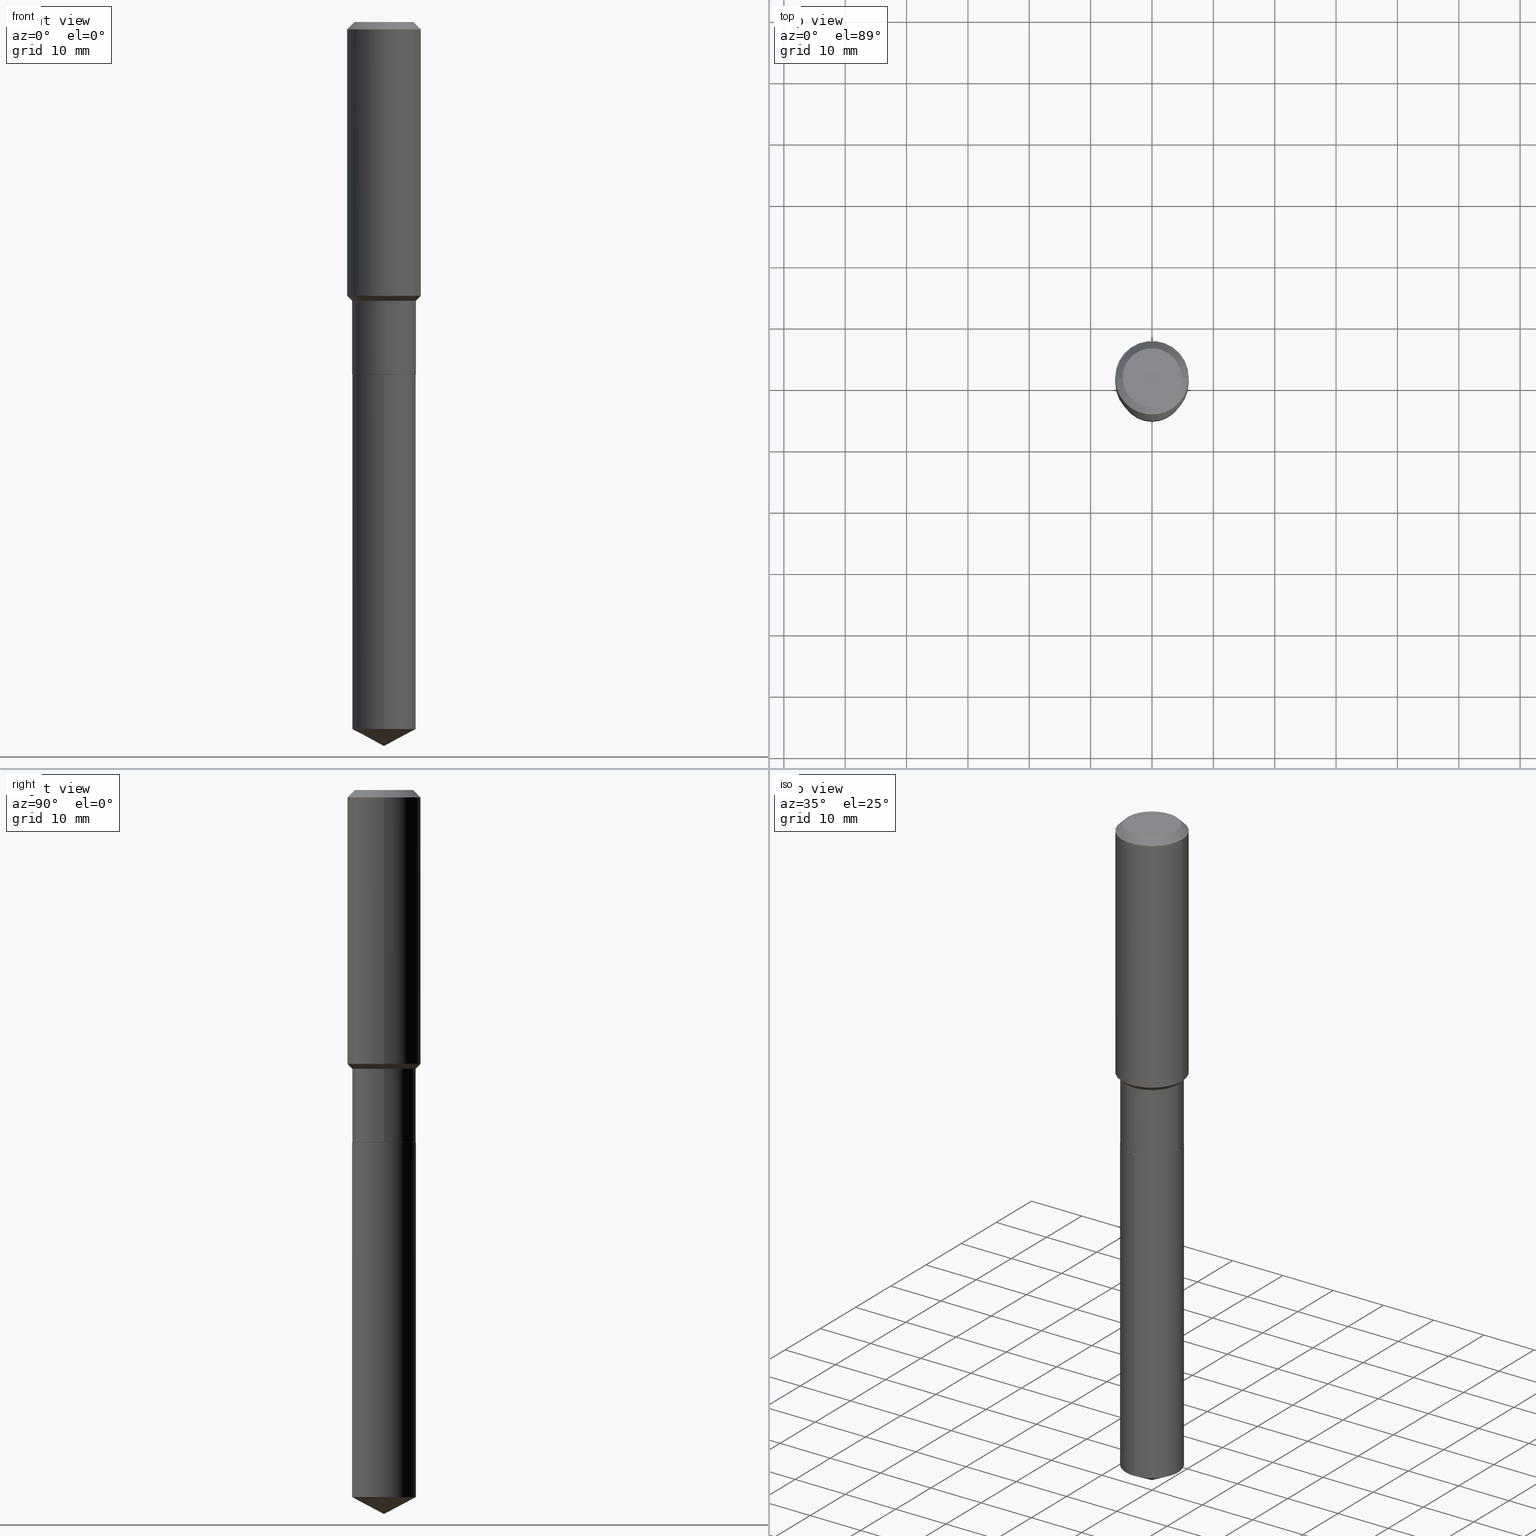
[diagram: canonical four-view strip — front | top / right | iso, engineering-drawing reading convention]
A machine part, canonical four-view strip (front | top / right | iso — engineering-drawing reading convention). The complete STEP part file that produces these views, byte-faithful:
ISO-10303-21;
HEADER;
FILE_DESCRIPTION (( 'STEP AP203' ),
    '1' );
FILE_NAME ('65234.STEP',
    '2024-04-24T21:45:18',
    ( '' ),
    ( '' ),
    'SwSTEP 2.0',
    'SolidWorks 2023',
    '' );
FILE_SCHEMA (( 'CONFIG_CONTROL_DESIGN' ));
ENDSEC;

DATA;
#1 = AXIS2_PLACEMENT_3D ( 'NONE', #62, #233, #350 ) ;
#2 = ORIENTED_EDGE ( 'NONE', *, *, #447, .F. ) ;
#3 = FACE_OUTER_BOUND ( 'NONE', #19, .T. ) ;
#4 = ORIENTED_EDGE ( 'NONE', *, *, #433, .F. ) ;
#5 = EDGE_CURVE ( 'NONE', #31, #87, #360, .T. ) ;
#6 = CYLINDRICAL_SURFACE ( 'NONE', #91, 0.2362000000000001043 ) ;
#7 = DIRECTION ( 'NONE',  ( -0.7071067811865474617, 7.493145998870352582E-15, 0.7071067811865474617 ) ) ;
#8 = CARTESIAN_POINT ( 'NONE',  ( -0.2362000000000002153, -4.458151085218409431E-15, -1.757549999999999057 ) ) ;
#9 = DIRECTION ( 'NONE',  ( -2.445468806185136597E-29, 3.491481338843145583E-15, 1.000000000000000000 ) ) ;
#10 = AXIS2_PLACEMENT_3D ( 'NONE', #69, #172, #111 ) ;
#11 = APPROVAL_DATE_TIME ( #347, #262 ) ;
#12 = DIRECTION ( 'NONE',  ( -2.445449978833330651E-29, 3.491508300682517841E-15, 1.000000000000000000 ) ) ;
#13 = DIRECTION ( 'NONE',  ( 1.000000000000000000, -6.982962677686265922E-15, 0.000000000000000000 ) ) ;
#14 = PERSON_AND_ORGANIZATION_ROLE ( 'creator' ) ;
#15 = ORIENTED_EDGE ( 'NONE', *, *, #223, .F. ) ;
#16 = CARTESIAN_POINT ( 'NONE',  ( 5.526514955097788983E-29, -7.890398677651621852E-15, -2.259899999999999132 ) ) ;
#17 = SECURITY_CLASSIFICATION_LEVEL ( 'unclassified' ) ;
#18 = LINE ( 'NONE', #474, #314 ) ;
#19 = EDGE_LOOP ( 'NONE', ( #380, #15 ) ) ;
#20 = EDGE_CURVE ( 'NONE', #132, #204, #367, .T. ) ;
#21 = AXIS2_PLACEMENT_3D ( 'NONE', #301, #117, #427 ) ;
#22 = COORDINATED_UNIVERSAL_TIME_OFFSET ( 5, 0, .BEHIND. ) ;
#23 = DIRECTION ( 'NONE',  ( -2.445468806185136877E-29, 3.491481338843145188E-15, 1.000000000000000000 ) ) ;
#24 = CYLINDRICAL_SURFACE ( 'NONE', #83, 0.2362000000000001043 ) ;
#25 = ORIENTED_EDGE ( 'NONE', *, *, #209, .F. ) ;
#26 = ORIENTED_EDGE ( 'NONE', *, *, #135, .F. ) ;
#27 = APPROVAL_PERSON_ORGANIZATION ( #378, #262, #263 ) ;
#28 = CC_DESIGN_APPROVAL ( #51, ( #463 ) ) ;
#29 = LINE ( 'NONE', #170, #104 ) ;
#30 = CARTESIAN_POINT ( 'NONE',  ( 0.2042499999999999871, -9.316668804569043122E-15, -2.259899999999999132 ) ) ;
#31 = VERTEX_POINT ( 'NONE', #408 ) ;
#32 = CALENDAR_DATE ( 2024, 24, 4 ) ;
#33 = DIRECTION ( 'NONE',  ( 1.000000000000000000, -6.982962677686266711E-15, 4.876185090822587894E-29 ) ) ;
#34 = APPROVAL ( #202, 'UNSPECIFIED' ) ;
#35 = AXIS2_PLACEMENT_3D ( 'NONE', #41, #178, #13 ) ;
#36 = AXIS2_PLACEMENT_3D ( 'NONE', #405, #287, #445 ) ;
#37 = CARTESIAN_POINT ( 'NONE',  ( 1.136082696666600344E-28, -1.622050011248077110E-14, -4.645699999999999719 ) ) ;
#38 = CARTESIAN_POINT ( 'NONE',  ( 5.526514955097788983E-29, -7.890398677651621852E-15, -2.259899999999999132 ) ) ;
#39 = CARTESIAN_POINT ( 'NONE',  ( 4.374943694265207941E-29, -6.246260115190385105E-15, -1.788999999999999480 ) ) ;
#40 = CARTESIAN_POINT ( 'NONE',  ( -0.2047499999999999043, -5.612620274617487685E-15, -1.788999999999999480 ) ) ;
#41 = CARTESIAN_POINT ( 'NONE',  ( 4.374943694265207941E-29, -6.246260115190385105E-15, -1.788999999999999480 ) ) ;
#42 = LINE ( 'NONE', #364, #277 ) ;
#43 = CARTESIAN_POINT ( 'NONE',  ( 1.454836251468860065E-15, 0.2047499999999921050, -2.259900000000000020 ) ) ;
#44 = CC_DESIGN_APPROVAL ( #262, ( #469 ) ) ;
#45 = VERTEX_POINT ( 'NONE', #109 ) ;
#46 = EDGE_CURVE ( 'NONE', #431, #162, #211, .T. ) ;
#47 = EDGE_LOOP ( 'NONE', ( #437, #428, #180, #2 ) ) ;
#48 = ORIENTED_EDGE ( 'NONE', *, *, #483, .F. ) ;
#49 = ADVANCED_FACE ( 'NONE', ( #456 ), #6, .T. ) ;
#50 = DIRECTION ( 'NONE',  ( 0.7071067811865474617, -2.468850131082256666E-15, 0.7071067811865474617 ) ) ;
#51 = APPROVAL ( #267, 'UNSPECIFIED' ) ;
#52 = ORIENTED_EDGE ( 'NONE', *, *, #327, .T. ) ;
#53 = AXIS2_PLACEMENT_3D ( 'NONE', #38, #303, #467 ) ;
#54 = PERSON_AND_ORGANIZATION_ROLE ( 'creator' ) ;
#55 = DIRECTION ( 'NONE',  ( -1.000000000000000000, 6.982962677686265922E-15, -4.876176775795935793E-29 ) ) ;
#56 = PERSON_AND_ORGANIZATION_ROLE ( 'design_supplier' ) ;
#57 = CARTESIAN_POINT ( 'NONE',  ( 1.155239464041865506E-30, -1.649375784469511859E-16, -0.04724000000000028177 ) ) ;
#58 = ORIENTED_EDGE ( 'NONE', *, *, #370, .F. ) ;
#59 = COORDINATED_UNIVERSAL_TIME_OFFSET ( 5, 0, .BEHIND. ) ;
#60 = DIRECTION ( 'NONE',  ( 2.445468806185136597E-29, -3.491481338843145583E-15, -1.000000000000000000 ) ) ;
#61 = ORIENTED_EDGE ( 'NONE', *, *, #291, .T. ) ;
#62 = CARTESIAN_POINT ( 'NONE',  ( 0.000000000000000000, 0.000000000000000000, 0.000000000000000000 ) ) ;
#63 = EDGE_CURVE ( 'NONE', #273, #431, #423, .T. ) ;
#64 = EDGE_CURVE ( 'NONE', #222, #132, #70, .T. ) ;
#65 = CARTESIAN_POINT ( 'NONE',  ( -0.1889600000000000168, 1.401969416799070942E-15, 3.855188123706346622E-18 ) ) ;
#66 = CARTESIAN_POINT ( 'NONE',  ( -9.427742298522546243E-47, 1.346031739168365344E-32, 3.855188123715862256E-18 ) ) ;
#67 = CIRCLE ( 'NONE', #21, 0.2361999999999999933 ) ;
#68 = ORIENTED_EDGE ( 'NONE', *, *, #84, .T. ) ;
#69 = CARTESIAN_POINT ( 'NONE',  ( 5.526514955097788983E-29, -7.890398677651621852E-15, -2.259899999999999132 ) ) ;
#70 = LINE ( 'NONE', #37, #113 ) ;
#71 = CARTESIAN_POINT ( 'NONE',  ( 4.298033700310684854E-29, -6.136453027083767403E-15, -1.757549999999999057 ) ) ;
#72 = FACE_OUTER_BOUND ( 'NONE', #226, .T. ) ;
#73 = CARTESIAN_POINT ( 'NONE',  ( 4.374943694265207941E-29, -6.246260115190385105E-15, -1.788999999999999480 ) ) ;
#74 = CYLINDRICAL_SURFACE ( 'NONE', #393, 0.2047499999999999598 ) ;
#75 =( LENGTH_UNIT ( ) NAMED_UNIT ( * ) SI_UNIT ( $, .METRE. ) );
#76 = CONICAL_SURFACE ( 'NONE', #143, 74.04434902938369589, 1.082104136236487379 ) ;
#77 = CARTESIAN_POINT ( 'NONE',  ( -0.2047499999999999043, -4.791423863721580851E-15, -1.788999999999999480 ) ) ;
#78 = VECTOR ( 'NONE', #296, 39.37007874015748854 ) ;
#79 = CONICAL_SURFACE ( 'NONE', #190, 0.2361999999999999933, 0.7853981633974452814 ) ;
#80 = DIRECTION ( 'NONE',  ( 0.000000000000000000, 0.000000000000000000, 1.000000000000000000 ) ) ;
#81 = DATE_TIME_ROLE ( 'creation_date' ) ;
#82 = CARTESIAN_POINT ( 'NONE',  ( -4.713871149261273121E-47, 6.730158695841826722E-33, 1.927594061857931128E-18 ) ) ;
#83 = AXIS2_PLACEMENT_3D ( 'NONE', #476, #377, #234 ) ;
#84 = EDGE_CURVE ( 'NONE', #204, #45, #188, .T. ) ;
#85 = DIRECTION ( 'NONE',  ( -6.982962677686265922E-15, -1.000000000000000000, 2.668471788683041116E-15 ) ) ;
#86 = CARTESIAN_POINT ( 'NONE',  ( 0.2361999999999999933, -1.814313362916447440E-15, -0.04724000000000028177 ) ) ;
#87 = VERTEX_POINT ( 'NONE', #138 ) ;
#88 = DATE_AND_TIME ( #166, #154 ) ;
#89 = DIRECTION ( 'NONE',  ( 1.000000000000000000, -6.982962677686266711E-15, 0.000000000000000000 ) ) ;
#90 = ORIENTED_EDGE ( 'NONE', *, *, #84, .F. ) ;
#91 = AXIS2_PLACEMENT_3D ( 'NONE', #298, #372, #488 ) ;
#92 = EDGE_CURVE ( 'NONE', #222, #110, #257, .T. ) ;
#93 = VECTOR ( 'NONE', #7, 39.37007874015748854 ) ;
#94 = EDGE_LOOP ( 'NONE', ( #403, #275, #25 ) ) ;
#95 = ORIENTED_EDGE ( 'NONE', *, *, #409, .F. ) ;
#96 = AXIS2_PLACEMENT_3D ( 'NONE', #294, #242, #402 ) ;
#97 = DATE_TIME_ROLE ( 'classification_date' ) ;
#98 = EDGE_LOOP ( 'NONE', ( #462, #208, #237, #61 ) ) ;
#99 = ADVANCED_FACE ( 'NONE', ( #72 ), #218, .T. ) ;
#100 = DIRECTION ( 'NONE',  ( -2.445449978833330651E-29, 3.491508300682517446E-15, 1.000000000000000000 ) ) ;
#101 = DIRECTION ( 'NONE',  ( -2.445449978833330651E-29, 3.491508300682517841E-15, 1.000000000000000000 ) ) ;
#102 = CARTESIAN_POINT ( 'NONE',  ( 1.454836251468915680E-15, 0.2047499999999841391, -4.536832493867312799 ) ) ;
#103 = CARTESIAN_POINT ( 'NONE',  ( -8.491668870718633283E-28, 1.212405175383641938E-13, 34.72437874015748349 ) ) ;
#104 = VECTOR ( 'NONE', #315, 39.37007874015748143 ) ;
#105 = DIRECTION ( 'NONE',  ( -2.445449978833330651E-29, 3.491508300682517841E-15, 1.000000000000000000 ) ) ;
#106 = APPROVAL_PERSON_ORGANIZATION ( #159, #51, #424 ) ;
#107 = EDGE_LOOP ( 'NONE', ( #128, #282, #158, #278 ) ) ;
#108 = DIRECTION ( 'NONE',  ( 1.000000000000000000, -6.982962677686265922E-15, 0.000000000000000000 ) ) ;
#109 = CARTESIAN_POINT ( 'NONE',  ( 1.454836251468916272E-15, 0.2047499999999921050, -2.259900000000000020 ) ) ;
#110 = VERTEX_POINT ( 'NONE', #102 ) ;
#111 = DIRECTION ( 'NONE',  ( 6.982962677686265922E-15, 1.000000000000000000, -3.491508300682517446E-15 ) ) ;
#112 = DIRECTION ( 'NONE',  ( -0.7071067811866199593, 7.493145998870616062E-15, 0.7071067811864750752 ) ) ;
#113 = VECTOR ( 'NONE', #363, 39.37007874015747433 ) ;
#114 = AXIS2_PLACEMENT_3D ( 'NONE', #16, #390, #432 ) ;
#115 = CC_DESIGN_PERSON_AND_ORGANIZATION_ASSIGNMENT ( #440, #207, ( #338 ) ) ;
#116 = UNCERTAINTY_MEASURE_WITH_UNIT (LENGTH_MEASURE( 1.000000000000000082E-05 ), #183, 'distance_accuracy_value', 'NONE');
#117 = DIRECTION ( 'NONE',  ( -2.445468806185136597E-29, 3.491481338843145583E-15, 1.000000000000000000 ) ) ;
#118 = ORIENTED_EDGE ( 'NONE', *, *, #185, .F. ) ;
#119 = CARTESIAN_POINT ( 'NONE',  ( 1.136082696666600344E-28, -1.622050011248077110E-14, -4.645699999999999719 ) ) ;
#120 = ORIENTED_EDGE ( 'NONE', *, *, #483, .T. ) ;
#121 = APPLICATION_PROTOCOL_DEFINITION ( 'international standard', 'config_control_design', 1994, #414 ) ;
#122 = DIRECTION ( 'NONE',  ( -1.000000000000000000, 6.982962677686266711E-15, 0.000000000000000000 ) ) ;
#123 =( GEOMETRIC_REPRESENTATION_CONTEXT ( 3 ) GLOBAL_UNCERTAINTY_ASSIGNED_CONTEXT ( ( #116 ) ) GLOBAL_UNIT_ASSIGNED_CONTEXT ( ( #183, #472, #186 ) ) REPRESENTATION_CONTEXT ( 'NONE', 'WORKASPACE' ) );
#124 = CC_DESIGN_SECURITY_CLASSIFICATION ( #338, ( #463 ) ) ;
#125 = CC_DESIGN_PERSON_AND_ORGANIZATION_ASSIGNMENT ( #157, #54, ( #469 ) ) ;
#126 = DIRECTION ( 'NONE',  ( -6.982962677686265922E-15, -1.000000000000000000, 4.002707683024561674E-15 ) ) ;
#127 = CARTESIAN_POINT ( 'NONE',  ( -0.2047499999999999598, 1.454836251468804845E-15, -1.007151959729691630E-29 ) ) ;
#128 = ORIENTED_EDGE ( 'NONE', *, *, #135, .T. ) ;
#129 = DIRECTION ( 'NONE',  ( -2.445468806185136597E-29, 3.491481338843145583E-15, 1.000000000000000000 ) ) ;
#130 = CC_DESIGN_PERSON_AND_ORGANIZATION_ASSIGNMENT ( #225, #459, ( #200 ) ) ;
#131 = AXIS2_PLACEMENT_3D ( 'NONE', #362, #251, #213 ) ;
#132 = VERTEX_POINT ( 'NONE', #250 ) ;
#133 = FACE_OUTER_BOUND ( 'NONE', #265, .T. ) ;
#134 = ORIENTED_EDGE ( 'NONE', *, *, #185, .T. ) ;
#135 = EDGE_CURVE ( 'NONE', #31, #162, #284, .T. ) ;
#136 = CONICAL_SURFACE ( 'NONE', #219, 0.2361999999999999933, 0.7853981633974452814 ) ;
#137 = CC_DESIGN_PERSON_AND_ORGANIZATION_ASSIGNMENT ( #387, #56, ( #463 ) ) ;
#138 = CARTESIAN_POINT ( 'NONE',  ( 0.2047499999999999043, -7.676021723446647015E-15, -1.788999999999999480 ) ) ;
#139 = CARTESIAN_POINT ( 'NONE',  ( -0.2361999999999999933, 1.484438206022545019E-15, -0.04724000000000028177 ) ) ;
#140 = ADVANCED_FACE ( 'NONE', ( #413 ), #74, .T. ) ;
#141 = LINE ( 'NONE', #139, #365 ) ;
#142 = ADVANCED_FACE ( 'NONE', ( #290 ), #76, .T. ) ;
#143 = AXIS2_PLACEMENT_3D ( 'NONE', #220, #105, #253 ) ;
#144 = AXIS2_PLACEMENT_3D ( 'NONE', #335, #261, #89 ) ;
#145 = ORIENTED_EDGE ( 'NONE', *, *, #223, .T. ) ;
#146 = PLANE ( 'NONE',  #96 ) ;
#147 = ADVANCED_FACE ( 'NONE', ( #369 ), #460, .T. ) ;
#148 = DIRECTION ( 'NONE',  ( -2.445468806185136597E-29, 3.491481338843145583E-15, 1.000000000000000000 ) ) ;
#149 = APPLICATION_CONTEXT ( 'configuration controlled 3d designs of mechanical parts and assemblies' ) ;
#150 = DIRECTION ( 'NONE',  ( 1.000000000000000000, -6.982962677686266711E-15, 0.000000000000000000 ) ) ;
#151 = EDGE_LOOP ( 'NONE', ( #58, #406, #243, #48 ) ) ;
#152 = AXIS2_PLACEMENT_3D ( 'NONE', #156, #465, #382 ) ;
#153 = CONICAL_SURFACE ( 'NONE', #486, 74.04434902938369589, 1.082104136236487379 ) ;
#154 = LOCAL_TIME ( 17, 45, 18.00000000000000000, #430 ) ;
#155 = DIRECTION ( 'NONE',  ( 2.445468806185136597E-29, -3.491481338843145583E-15, -1.000000000000000000 ) ) ;
#156 = CARTESIAN_POINT ( 'NONE',  ( 5.526514955097788983E-29, -7.890398677651621852E-15, -2.259899999999999132 ) ) ;
#157 = PERSON_AND_ORGANIZATION ( #420, #337 ) ;
#158 = ORIENTED_EDGE ( 'NONE', *, *, #416, .F. ) ;
#159 = PERSON_AND_ORGANIZATION ( #420, #337 ) ;
#160 = ORIENTED_EDGE ( 'NONE', *, *, #416, .T. ) ;
#161 = CARTESIAN_POINT ( 'NONE',  ( 0.2047499999999999043, -7.676021723446647015E-15, -1.788999999999999480 ) ) ;
#162 = VERTEX_POINT ( 'NONE', #356 ) ;
#163 = AXIS2_PLACEMENT_3D ( 'NONE', #448, #101, #85 ) ;
#164 = APPLICATION_PROTOCOL_DEFINITION ( 'international standard', 'config_control_design', 1994, #149 ) ;
#165 = EDGE_LOOP ( 'NONE', ( #438, #305, #392, #478 ) ) ;
#166 = CALENDAR_DATE ( 2024, 24, 4 ) ;
#167 = PRODUCT_RELATED_PRODUCT_CATEGORY ( 'detail', '', ( #200 ) ) ;
#168 = ORIENTED_EDGE ( 'NONE', *, *, #201, .T. ) ;
#169 = ORIENTED_EDGE ( 'NONE', *, *, #346, .T. ) ;
#170 = CARTESIAN_POINT ( 'NONE',  ( 0.2361999999999999933, -1.785387205520586782E-15, -0.04724000000000028177 ) ) ;
#171 = VERTEX_POINT ( 'NONE', #339 ) ;
#172 = DIRECTION ( 'NONE',  ( 2.445449978833330651E-29, -3.491508300682517446E-15, -1.000000000000000000 ) ) ;
#173 = VECTOR ( 'NONE', #292, 39.37007874015748143 ) ;
#174 = AXIS2_PLACEMENT_3D ( 'NONE', #82, #229, #55 ) ;
#175 = DIRECTION ( 'NONE',  ( 1.000000000000000000, -6.982962677686270655E-15, 0.000000000000000000 ) ) ;
#176 = LINE ( 'NONE', #43, #329 ) ;
#177 = DIRECTION ( 'NONE',  ( -2.445468806185136597E-29, 3.491481338843145583E-15, 1.000000000000000000 ) ) ;
#178 = DIRECTION ( 'NONE',  ( -2.445468806185136597E-29, 3.491481338843145583E-15, 1.000000000000000000 ) ) ;
#179 = DIRECTION ( 'NONE',  ( 1.000000000000000000, -6.982962677686265922E-15, 0.000000000000000000 ) ) ;
#180 = ORIENTED_EDGE ( 'NONE', *, *, #295, .F. ) ;
#181 = DIRECTION ( 'NONE',  ( -2.445449978833330651E-29, 3.491508300682517841E-15, 1.000000000000000000 ) ) ;
#182 = CIRCLE ( 'NONE', #299, 0.2047499999999999876 ) ;
#183 =( CONVERSION_BASED_UNIT ( 'INCH', #373 ) LENGTH_UNIT ( ) NAMED_UNIT ( #371 ) );
#184 = EDGE_LOOP ( 'NONE', ( #168, #52 ) ) ;
#185 = EDGE_CURVE ( 'NONE', #45, #204, #182, .T. ) ;
#186 =( NAMED_UNIT ( * ) SI_UNIT ( $, .STERADIAN. ) SOLID_ANGLE_UNIT ( ) );
#187 = LINE ( 'NONE', #161, #320 ) ;
#188 = CIRCLE ( 'NONE', #266, 0.2047499999999999876 ) ;
#189 = ADVANCED_FACE ( 'NONE', ( #306 ), #260, .T. ) ;
#190 = AXIS2_PLACEMENT_3D ( 'NONE', #57, #60, #344 ) ;
#191 = DATE_AND_TIME ( #466, #214 ) ;
#192 = ORIENTED_EDGE ( 'NONE', *, *, #46, .T. ) ;
#193 = ORIENTED_EDGE ( 'NONE', *, *, #209, .T. ) ;
#194 = DATE_AND_TIME ( #302, #308 ) ;
#195 = DIRECTION ( 'NONE',  ( 1.000000000000000000, -6.982962677686266711E-15, 4.876185090822587894E-29 ) ) ;
#196 = FACE_OUTER_BOUND ( 'NONE', #391, .T. ) ;
#197 = ADVANCED_FACE ( 'NONE', ( #133 ), #452, .T. ) ;
#198 = CIRCLE ( 'NONE', #114, 0.2042499999999999871 ) ;
#199 = APPROVAL_PERSON_ORGANIZATION ( #436, #34, #473 ) ;
#200 = PRODUCT ( '65234', '65234', '', ( #340 ) ) ;
#201 = EDGE_CURVE ( 'NONE', #259, #401, #276, .T. ) ;
#202 = APPROVAL_STATUS ( 'not_yet_approved' ) ;
#203 = VERTEX_POINT ( 'NONE', #317 ) ;
#204 = VERTEX_POINT ( 'NONE', #484 ) ;
#205 = EDGE_CURVE ( 'NONE', #132, #110, #479, .T. ) ;
#206 = CIRCLE ( 'NONE', #434, 0.2047499999999999043 ) ;
#207 = PERSON_AND_ORGANIZATION_ROLE ( 'classification_officer' ) ;
#208 = ORIENTED_EDGE ( 'NONE', *, *, #201, .F. ) ;
#209 = EDGE_CURVE ( 'NONE', #110, #132, #412, .T. ) ;
#210 = ORIENTED_EDGE ( 'NONE', *, *, #63, .T. ) ;
#211 = LINE ( 'NONE', #330, #319 ) ;
#212 = LINE ( 'NONE', #77, #93 ) ;
#213 = DIRECTION ( 'NONE',  ( -6.982962677686265922E-15, -1.000000000000000000, 4.002707683024561674E-15 ) ) ;
#214 = LOCAL_TIME ( 17, 45, 18.00000000000000000, #59 ) ;
#215 = CARTESIAN_POINT ( 'NONE',  ( 5.525292220694696181E-29, -7.888652936982201138E-15, -2.259399999999999409 ) ) ;
#216 = DIRECTION ( 'NONE',  ( -2.445468806185136597E-29, 3.491481338843145583E-15, 1.000000000000000000 ) ) ;
#217 = DIRECTION ( 'NONE',  ( -2.445468806185136597E-29, 3.491481338843145583E-15, 1.000000000000000000 ) ) ;
#218 = CONICAL_SURFACE ( 'NONE', #328, 0.2047499999999999043, 0.7853981633974482790 ) ;
#219 = AXIS2_PLACEMENT_3D ( 'NONE', #422, #155, #122 ) ;
#220 = CARTESIAN_POINT ( 'NONE',  ( -8.491668870718633283E-28, 1.212405175383641938E-13, 34.72437874015748349 ) ) ;
#221 = DIRECTION ( 'NONE',  ( -2.445468806185136597E-29, 3.491481338843145583E-15, 1.000000000000000000 ) ) ;
#222 = VERTEX_POINT ( 'NONE', #119 ) ;
#223 = EDGE_CURVE ( 'NONE', #431, #273, #198, .T. ) ;
#224 = CARTESIAN_POINT ( 'NONE',  ( 5.526514955097788983E-29, -7.890398677651621852E-15, -2.259899999999999132 ) ) ;
#225 = PERSON_AND_ORGANIZATION ( #420, #337 ) ;
#226 = EDGE_LOOP ( 'NONE', ( #160, #297, #477, #255 ) ) ;
#227 = ADVANCED_FACE ( 'NONE', ( #386 ), #352, .T. ) ;
#228 = CALENDAR_DATE ( 2024, 24, 4 ) ;
#229 = DIRECTION ( 'NONE',  ( 2.438088387897960049E-29, -3.491481338843145188E-15, -1.000000000000000000 ) ) ;
#230 = CLOSED_SHELL ( 'NONE', ( #197, #142, #249, #189, #280 ) ) ;
#231 = VECTOR ( 'NONE', #368, 39.37007874015748143 ) ;
#232 = MANIFOLD_SOLID_BREP ( 'Body-Move/Copy2[1]', #230 ) ;
#233 = DIRECTION ( 'NONE',  ( -2.445468806185136597E-29, 3.491481338843145583E-15, 1.000000000000000000 ) ) ;
#234 = DIRECTION ( 'NONE',  ( 1.000000000000000000, -6.982962677686266711E-15, 4.876176775795935793E-29 ) ) ;
#235 = PERSON_AND_ORGANIZATION ( #420, #337 ) ;
#236 = ADVANCED_FACE ( 'NONE', ( #196 ), #24, .T. ) ;
#237 = ORIENTED_EDGE ( 'NONE', *, *, #481, .T. ) ;
#238 = ORIENTED_EDGE ( 'NONE', *, *, #205, .T. ) ;
#239 = AXIS2_PLACEMENT_3D ( 'NONE', #458, #216, #175 ) ;
#240 = CONICAL_SURFACE ( 'NONE', #36, 0.2042499999999999871, 0.7853981633975507526 ) ;
#241 = ORIENTED_EDGE ( 'NONE', *, *, #20, .T. ) ;
#242 = DIRECTION ( 'NONE',  ( -2.438088387897960049E-29, 3.491481338843145188E-15, 1.000000000000000000 ) ) ;
#243 = ORIENTED_EDGE ( 'NONE', *, *, #5, .T. ) ;
#244 = LOCAL_TIME ( 17, 45, 18.00000000000000000, #426 ) ;
#245 = ORIENTED_EDGE ( 'NONE', *, *, #366, .F. ) ;
#246 = ORIENTED_EDGE ( 'NONE', *, *, #447, .T. ) ;
#247 = DIRECTION ( 'NONE',  ( 1.000000000000000000, -6.982962677686263555E-15, 0.000000000000000000 ) ) ;
#248 = ADVANCED_BREP_SHAPE_REPRESENTATION ( '65234', ( #232, #399, #404 ), #123 ) ;
#249 = ADVANCED_FACE ( 'NONE', ( #274 ), #153, .T. ) ;
#250 = CARTESIAN_POINT ( 'NONE',  ( -1.429761608256151864E-15, -0.2047500000000158360, -4.536832493867311911 ) ) ;
#251 = DIRECTION ( 'NONE',  ( -2.445449978833330651E-29, 3.491508300682517841E-15, 1.000000000000000000 ) ) ;
#252 = AXIS2_PLACEMENT_3D ( 'NONE', #343, #12, #468 ) ;
#253 = DIRECTION ( 'NONE',  ( -6.982962677686265922E-15, -1.000000000000000000, 3.541896320645553375E-15 ) ) ;
#254 = CARTESIAN_POINT ( 'NONE',  ( 0.1889600000000000168, -1.540873453589747738E-15, 3.855188123725863225E-18 ) ) ;
#255 = ORIENTED_EDGE ( 'NONE', *, *, #346, .F. ) ;
#256 = DIRECTION ( 'NONE',  ( 1.000000000000000000, -6.982962677686263555E-15, 0.000000000000000000 ) ) ;
#257 = LINE ( 'NONE', #288, #78 ) ;
#258 = ADVANCED_FACE ( 'NONE', ( #3 ), #146, .F. ) ;
#259 = VERTEX_POINT ( 'NONE', #65 ) ;
#260 = CYLINDRICAL_SURFACE ( 'NONE', #152, 0.2047499999999999876 ) ;
#261 = DIRECTION ( 'NONE',  ( -2.445468806185136597E-29, 3.491481338843145583E-15, 1.000000000000000000 ) ) ;
#262 = APPROVAL ( #334, 'UNSPECIFIED' ) ;
#263 = APPROVAL_ROLE ( '' ) ;
#264 = FACE_OUTER_BOUND ( 'NONE', #165, .T. ) ;
#265 = EDGE_LOOP ( 'NONE', ( #238, #417, #90, #407 ) ) ;
#266 = AXIS2_PLACEMENT_3D ( 'NONE', #410, #453, #322 ) ;
#267 = APPROVAL_STATUS ( 'not_yet_approved' ) ;
#268 = CIRCLE ( 'NONE', #300, 0.2362000000000002153 ) ;
#269 = LOCAL_TIME ( 17, 45, 18.00000000000000000, #400 ) ;
#270 = EDGE_LOOP ( 'NONE', ( #4, #120, #169, #95 ) ) ;
#271 = CARTESIAN_POINT ( 'NONE',  ( 0.000000000000000000, 0.000000000000000000, 0.000000000000000000 ) ) ;
#272 = ORIENTED_EDGE ( 'NONE', *, *, #92, .T. ) ;
#273 = VERTEX_POINT ( 'NONE', #30 ) ;
#274 = FACE_OUTER_BOUND ( 'NONE', #94, .T. ) ;
#275 = ORIENTED_EDGE ( 'NONE', *, *, #64, .T. ) ;
#276 = CIRCLE ( 'NONE', #411, 0.1889600000000000168 ) ;
#277 = VECTOR ( 'NONE', #325, 39.37007874015748143 ) ;
#278 = ORIENTED_EDGE ( 'NONE', *, *, #5, .F. ) ;
#279 = EDGE_CURVE ( 'NONE', #162, #31, #358, .T. ) ;
#280 = ADVANCED_FACE ( 'NONE', ( #355 ), #446, .F. ) ;
#281 = EDGE_LOOP ( 'NONE', ( #210, #192, #26, #357 ) ) ;
#282 = ORIENTED_EDGE ( 'NONE', *, *, #370, .T. ) ;
#283 = DIRECTION ( 'NONE',  ( -2.445468806185136597E-29, 3.491481338843145583E-15, 1.000000000000000000 ) ) ;
#284 = CIRCLE ( 'NONE', #336, 0.2047499999999999876 ) ;
#285 = AXIS2_PLACEMENT_3D ( 'NONE', #444, #283, #247 ) ;
#286 = ADVANCED_FACE ( 'NONE', ( #332 ), #480, .T. ) ;
#287 = DIRECTION ( 'NONE',  ( -2.445468806185136597E-29, 3.491481338843145583E-15, 1.000000000000000000 ) ) ;
#288 = CARTESIAN_POINT ( 'NONE',  ( 1.136091280872098222E-28, -1.622037825035917687E-14, -4.645699999999999719 ) ) ;
#289 = DIRECTION ( 'NONE',  ( -0.7071067811865453523, 2.468850131082234184E-15, -0.7071067811865496822 ) ) ;
#290 = FACE_OUTER_BOUND ( 'NONE', #442, .T. ) ;
#291 = EDGE_CURVE ( 'NONE', #171, #345, #67, .T. ) ;
#292 = DIRECTION ( 'NONE',  ( -2.445449978833330651E-29, 3.491508300682517446E-15, 1.000000000000000000 ) ) ;
#293 = CARTESIAN_POINT ( 'NONE',  ( -0.2042499999999999871, -6.436465912687506508E-15, -2.259899999999999132 ) ) ;
#294 = CARTESIAN_POINT ( 'NONE',  ( 5.526514955097788983E-29, -7.890398677651621852E-15, -2.259899999999999132 ) ) ;
#295 = EDGE_CURVE ( 'NONE', #345, #171, #443, .T. ) ;
#296 = DIRECTION ( 'NONE',  ( 6.273719981627766076E-15, 0.8829475928589298750, 0.4694715627858848661 ) ) ;
#297 = ORIENTED_EDGE ( 'NONE', *, *, #433, .T. ) ;
#298 = CARTESIAN_POINT ( 'NONE',  ( 0.000000000000000000, 0.000000000000000000, 0.000000000000000000 ) ) ;
#299 = AXIS2_PLACEMENT_3D ( 'NONE', #224, #421, #126 ) ;
#300 = AXIS2_PLACEMENT_3D ( 'NONE', #312, #129, #487 ) ;
#301 = CARTESIAN_POINT ( 'NONE',  ( 1.155239464041865506E-30, -1.649375784469511859E-16, -0.04724000000000028177 ) ) ;
#302 = CALENDAR_DATE ( 2024, 24, 4 ) ;
#303 = DIRECTION ( 'NONE',  ( -2.445468806185136597E-29, 3.491481338843145583E-15, 1.000000000000000000 ) ) ;
#304 = ORIENTED_EDGE ( 'NONE', *, *, #64, .F. ) ;
#305 = ORIENTED_EDGE ( 'NONE', *, *, #376, .T. ) ;
#306 = FACE_OUTER_BOUND ( 'NONE', #389, .T. ) ;
#307 = DIRECTION ( 'NONE',  ( 1.000000000000000000, 0.000000000000000000, 0.000000000000000000 ) ) ;
#308 = LOCAL_TIME ( 17, 45, 18.00000000000000000, #22 ) ;
#309 = DIRECTION ( 'NONE',  ( -2.445468806185136877E-29, 3.491481338843145188E-15, 1.000000000000000000 ) ) ;
#310 = ADVANCED_FACE ( 'NONE', ( #264 ), #136, .T. ) ;
#311 = DATE_AND_TIME ( #32, #269 ) ;
#312 = CARTESIAN_POINT ( 'NONE',  ( 4.298033700310684854E-29, -6.136453027083767403E-15, -1.757549999999999057 ) ) ;
#313 = ORIENTED_EDGE ( 'NONE', *, *, #279, .F. ) ;
#314 = VECTOR ( 'NONE', #309, 39.37007874015748143 ) ;
#315 = DIRECTION ( 'NONE',  ( 0.7071067811865453523, -7.319954787623248157E-15, -0.7071067811865496822 ) ) ;
#316 = ADVANCED_FACE ( 'NONE', ( #384 ), #379, .F. ) ;
#317 = CARTESIAN_POINT ( 'NONE',  ( 0.2362000000000002153, -7.785828811553264717E-15, -1.757549999999999057 ) ) ;
#318 = DIRECTION ( 'NONE',  ( -2.445468806185136877E-29, 3.491481338843145188E-15, 1.000000000000000000 ) ) ;
#319 = VECTOR ( 'NONE', #112, 39.37007874015748143 ) ;
#320 = VECTOR ( 'NONE', #50, 39.37007874015748854 ) ;
#321 = CC_DESIGN_APPROVAL ( #34, ( #338 ) ) ;
#322 = DIRECTION ( 'NONE',  ( -6.982962677686265922E-15, -1.000000000000000000, 4.002707683024561674E-15 ) ) ;
#323 = LINE ( 'NONE', #489, #231 ) ;
#324 = DIRECTION ( 'NONE',  ( 1.000000000000000000, -6.982962677686265922E-15, 0.000000000000000000 ) ) ;
#325 = DIRECTION ( 'NONE',  ( -2.445468806185136877E-29, 3.491481338843145188E-15, 1.000000000000000000 ) ) ;
#326 = DIRECTION ( 'NONE',  ( -6.982962677686265922E-15, -1.000000000000000000, 3.541896320645553375E-15 ) ) ;
#327 = EDGE_CURVE ( 'NONE', #401, #259, #471, .T. ) ;
#328 = AXIS2_PLACEMENT_3D ( 'NONE', #39, #449, #108 ) ;
#329 = VECTOR ( 'NONE', #100, 39.37007874015748143 ) ;
#330 = CARTESIAN_POINT ( 'NONE',  ( -0.2042499999999999871, -6.439115139861616920E-15, -2.259899999999999132 ) ) ;
#331 = CARTESIAN_POINT ( 'NONE',  ( -1.429761608256207479E-15, -0.2047500000000078701, -2.259899999999998688 ) ) ;
#332 = FACE_OUTER_BOUND ( 'NONE', #281, .T. ) ;
#333 = CC_DESIGN_DATE_AND_TIME_ASSIGNMENT ( #311, #97, ( #338 ) ) ;
#334 = APPROVAL_STATUS ( 'not_yet_approved' ) ;
#335 = CARTESIAN_POINT ( 'NONE',  ( 1.155239464041865506E-30, -1.649375784469511859E-16, -0.04724000000000028177 ) ) ;
#336 = AXIS2_PLACEMENT_3D ( 'NONE', #215, #177, #256 ) ;
#337 = ORGANIZATION ( 'UNSPECIFIED', 'UNSPECIFIED', '' ) ;
#338 = SECURITY_CLASSIFICATION ( '', '', #17 ) ;
#339 = CARTESIAN_POINT ( 'NONE',  ( -0.2361999999999999933, -1.472393360900001581E-15, -0.04724000000000028177 ) ) ;
#340 = MECHANICAL_CONTEXT ( 'NONE', #414, 'mechanical' ) ;
#341 = APPROVAL_DATE_TIME ( #191, #51 ) ;
#342 = EDGE_LOOP ( 'NONE', ( #461, #145, #354, #313 ) ) ;
#343 = CARTESIAN_POINT ( 'NONE',  ( 1.109463947403053403E-28, -1.584032738008309195E-14, -4.536832493867312799 ) ) ;
#344 = DIRECTION ( 'NONE',  ( -1.000000000000000000, 6.982962677686266711E-15, 0.000000000000000000 ) ) ;
#345 = VERTEX_POINT ( 'NONE', #86 ) ;
#346 = EDGE_CURVE ( 'NONE', #87, #203, #187, .T. ) ;
#347 = DATE_AND_TIME ( #228, #244 ) ;
#348 = CIRCLE ( 'NONE', #381, 0.2047499999999999043 ) ;
#349 = LINE ( 'NONE', #127, #418 ) ;
#350 = DIRECTION ( 'NONE',  ( 1.000000000000000000, -6.982962677686266711E-15, 4.876176775795936353E-29 ) ) ;
#351 = ORIENTED_EDGE ( 'NONE', *, *, #205, .F. ) ;
#352 = CYLINDRICAL_SURFACE ( 'NONE', #1, 0.2047499999999999598 ) ;
#353 = ADVANCED_FACE ( 'NONE', ( #388 ), #79, .T. ) ;
#354 = ORIENTED_EDGE ( 'NONE', *, *, #464, .T. ) ;
#355 = FACE_OUTER_BOUND ( 'NONE', #396, .T. ) ;
#356 = CARTESIAN_POINT ( 'NONE',  ( -0.2047499999999999876, -5.612620274617487685E-15, -2.259399999999999409 ) ) ;
#357 = ORIENTED_EDGE ( 'NONE', *, *, #464, .F. ) ;
#358 = CIRCLE ( 'NONE', #285, 0.2047499999999999876 ) ;
#359 = SHAPE_DEFINITION_REPRESENTATION ( #429, #248 ) ;
#360 = LINE ( 'NONE', #361, #454 ) ;
#361 = CARTESIAN_POINT ( 'NONE',  ( 0.2047499999999999598, -1.429761608256262896E-15, 9.983971948442177163E-30 ) ) ;
#362 = CARTESIAN_POINT ( 'NONE',  ( 5.526514955097788983E-29, -7.890398677651621852E-15, -2.259899999999999132 ) ) ;
#363 = DIRECTION ( 'NONE',  ( -6.165590087286837607E-15, -0.8829475928589267664, 0.4694715627858912499 ) ) ;
#364 = CARTESIAN_POINT ( 'NONE',  ( 0.2362000000000001043, -1.649375784469496920E-15, 1.151752954443000508E-29 ) ) ;
#365 = VECTOR ( 'NONE', #289, 39.37007874015748143 ) ;
#366 = EDGE_CURVE ( 'NONE', #398, #171, #18, .T. ) ;
#367 = LINE ( 'NONE', #331, #173 ) ;
#368 = DIRECTION ( 'NONE',  ( 0.7071067811866199593, -2.468850131083015945E-15, 0.7071067811864750752 ) ) ;
#369 = FACE_OUTER_BOUND ( 'NONE', #270, .T. ) ;
#370 = EDGE_CURVE ( 'NONE', #162, #470, #349, .T. ) ;
#371 = DIMENSIONAL_EXPONENTS ( 1.000000000000000000, 0.000000000000000000, 0.000000000000000000, 0.000000000000000000, 0.000000000000000000, 0.000000000000000000, 0.000000000000000000 ) ;
#372 = DIRECTION ( 'NONE',  ( -2.445468806185136597E-29, 3.491481338843145583E-15, 1.000000000000000000 ) ) ;
#373 = LENGTH_MEASURE_WITH_UNIT ( LENGTH_MEASURE( 0.02539999999999999897 ), #75 );
#374 = EDGE_CURVE ( 'NONE', #203, #398, #268, .T. ) ;
#375 = CARTESIAN_POINT ( 'NONE',  ( 0.000000000000000000, 0.000000000000000000, 0.000000000000000000 ) ) ;
#376 = EDGE_CURVE ( 'NONE', #401, #345, #29, .T. ) ;
#377 = DIRECTION ( 'NONE',  ( -2.445468806185136597E-29, 3.491481338843145583E-15, 1.000000000000000000 ) ) ;
#378 = PERSON_AND_ORGANIZATION ( #420, #337 ) ;
#379 = PLANE ( 'NONE',  #174 ) ;
#380 = ORIENTED_EDGE ( 'NONE', *, *, #63, .F. ) ;
#381 = AXIS2_PLACEMENT_3D ( 'NONE', #73, #221, #179 ) ;
#382 = DIRECTION ( 'NONE',  ( -6.982962677686265922E-15, -1.000000000000000000, 4.002707683024561674E-15 ) ) ;
#383 = ADVANCED_FACE ( 'NONE', ( #482 ), #240, .T. ) ;
#384 = FACE_OUTER_BOUND ( 'NONE', #184, .T. ) ;
#385 = ORIENTED_EDGE ( 'NONE', *, *, #451, .F. ) ;
#386 = FACE_OUTER_BOUND ( 'NONE', #151, .T. ) ;
#387 = PERSON_AND_ORGANIZATION ( #420, #337 ) ;
#388 = FACE_OUTER_BOUND ( 'NONE', #98, .T. ) ;
#389 = EDGE_LOOP ( 'NONE', ( #385, #193, #241, #118 ) ) ;
#390 = DIRECTION ( 'NONE',  ( -2.445468806185136597E-29, 3.491481338843145583E-15, 1.000000000000000000 ) ) ;
#391 = EDGE_LOOP ( 'NONE', ( #245, #435, #246, #475 ) ) ;
#392 = ORIENTED_EDGE ( 'NONE', *, *, #295, .T. ) ;
#393 = AXIS2_PLACEMENT_3D ( 'NONE', #375, #457, #415 ) ;
#394 = AXIS2_PLACEMENT_3D ( 'NONE', #71, #217, #150 ) ;
#395 = APPROVAL_DATE_TIME ( #88, #34 ) ;
#396 = EDGE_LOOP ( 'NONE', ( #68, #134 ) ) ;
#397 = CC_DESIGN_DATE_AND_TIME_ASSIGNMENT ( #194, #81, ( #469 ) ) ;
#398 = VERTEX_POINT ( 'NONE', #8 ) ;
#399 = MANIFOLD_SOLID_BREP ( 'Body-Move/Copy2[2]', #485 ) ;
#400 = COORDINATED_UNIVERSAL_TIME_OFFSET ( 5, 0, .BEHIND. ) ;
#401 = VERTEX_POINT ( 'NONE', #254 ) ;
#402 = DIRECTION ( 'NONE',  ( 1.000000000000000000, -6.982962677686265922E-15, 4.876176775795935793E-29 ) ) ;
#403 = ORIENTED_EDGE ( 'NONE', *, *, #92, .F. ) ;
#404 = AXIS2_PLACEMENT_3D ( 'NONE', #271, #80, #307 ) ;
#405 = CARTESIAN_POINT ( 'NONE',  ( 5.526514955097788983E-29, -7.890398677651621852E-15, -2.259899999999999132 ) ) ;
#406 = ORIENTED_EDGE ( 'NONE', *, *, #279, .T. ) ;
#407 = ORIENTED_EDGE ( 'NONE', *, *, #20, .F. ) ;
#408 = CARTESIAN_POINT ( 'NONE',  ( 0.2047499999999999876, -9.318414545238462259E-15, -2.259399999999999409 ) ) ;
#409 = EDGE_CURVE ( 'NONE', #398, #203, #419, .T. ) ;
#410 = CARTESIAN_POINT ( 'NONE',  ( 5.526514955097788983E-29, -7.890398677651621852E-15, -2.259899999999999132 ) ) ;
#411 = AXIS2_PLACEMENT_3D ( 'NONE', #66, #439, #33 ) ;
#412 = CIRCLE ( 'NONE', #252, 0.2047499999999999876 ) ;
#413 = FACE_OUTER_BOUND ( 'NONE', #107, .T. ) ;
#414 = APPLICATION_CONTEXT ( 'configuration controlled 3d designs of mechanical parts and assemblies' ) ;
#415 = DIRECTION ( 'NONE',  ( 1.000000000000000000, -6.982962677686266711E-15, 4.876176775795936353E-29 ) ) ;
#416 = EDGE_CURVE ( 'NONE', #87, #470, #348, .T. ) ;
#417 = ORIENTED_EDGE ( 'NONE', *, *, #451, .T. ) ;
#418 = VECTOR ( 'NONE', #23, 39.37007874015748143 ) ;
#419 = CIRCLE ( 'NONE', #394, 0.2362000000000002153 ) ;
#420 = PERSON ( 'UNSPECIFIED', 'UNSPECIFIED', 'UNSPECIFIED', ('UNSPECIFIED'), ('UNSPECIFIED'), ('UNSPECIFIED') ) ;
#421 = DIRECTION ( 'NONE',  ( -2.445449978833330651E-29, 3.491508300682517841E-15, 1.000000000000000000 ) ) ;
#422 = CARTESIAN_POINT ( 'NONE',  ( 1.155239464041865506E-30, -1.649375784469511859E-16, -0.04724000000000028177 ) ) ;
#423 = CIRCLE ( 'NONE', #239, 0.2042499999999999871 ) ;
#424 = APPROVAL_ROLE ( '' ) ;
#425 = CARTESIAN_POINT ( 'NONE',  ( -9.427742298522546243E-47, 1.346031739168365344E-32, 3.855188123715862256E-18 ) ) ;
#426 = COORDINATED_UNIVERSAL_TIME_OFFSET ( 5, 0, .BEHIND. ) ;
#427 = DIRECTION ( 'NONE',  ( 1.000000000000000000, -6.982962677686266711E-15, 0.000000000000000000 ) ) ;
#428 = ORIENTED_EDGE ( 'NONE', *, *, #366, .T. ) ;
#429 = PRODUCT_DEFINITION_SHAPE ( 'NONE', 'NONE',  #469 ) ;
#430 = COORDINATED_UNIVERSAL_TIME_OFFSET ( 5, 0, .BEHIND. ) ;
#431 = VERTEX_POINT ( 'NONE', #293 ) ;
#432 = DIRECTION ( 'NONE',  ( 1.000000000000000000, -6.982962677686270655E-15, 0.000000000000000000 ) ) ;
#433 = EDGE_CURVE ( 'NONE', #470, #398, #212, .T. ) ;
#434 = AXIS2_PLACEMENT_3D ( 'NONE', #450, #148, #324 ) ;
#435 = ORIENTED_EDGE ( 'NONE', *, *, #409, .T. ) ;
#436 = PERSON_AND_ORGANIZATION ( #420, #337 ) ;
#437 = ORIENTED_EDGE ( 'NONE', *, *, #374, .T. ) ;
#438 = ORIENTED_EDGE ( 'NONE', *, *, #327, .F. ) ;
#439 = DIRECTION ( 'NONE',  ( -2.445468806185136597E-29, 3.491481338843145583E-15, 1.000000000000000000 ) ) ;
#440 = PERSON_AND_ORGANIZATION ( #420, #337 ) ;
#441 = CC_DESIGN_PERSON_AND_ORGANIZATION_ASSIGNMENT ( #235, #14, ( #463 ) ) ;
#442 = EDGE_LOOP ( 'NONE', ( #304, #272, #351 ) ) ;
#443 = CIRCLE ( 'NONE', #144, 0.2361999999999999933 ) ;
#444 = CARTESIAN_POINT ( 'NONE',  ( 5.525292220694696181E-29, -7.888652936982201138E-15, -2.259399999999999409 ) ) ;
#445 = DIRECTION ( 'NONE',  ( 1.000000000000000000, -6.982962677686270655E-15, 0.000000000000000000 ) ) ;
#446 = PLANE ( 'NONE',  #10 ) ;
#447 = EDGE_CURVE ( 'NONE', #203, #345, #42, .T. ) ;
#448 = CARTESIAN_POINT ( 'NONE',  ( 1.109463947403053403E-28, -1.584032738008309195E-14, -4.536832493867312799 ) ) ;
#449 = DIRECTION ( 'NONE',  ( -2.445468806185136597E-29, 3.491481338843145583E-15, 1.000000000000000000 ) ) ;
#450 = CARTESIAN_POINT ( 'NONE',  ( 4.374943694265207941E-29, -6.246260115190385105E-15, -1.788999999999999480 ) ) ;
#451 = EDGE_CURVE ( 'NONE', #110, #45, #176, .T. ) ;
#452 = CYLINDRICAL_SURFACE ( 'NONE', #131, 0.2047499999999999876 ) ;
#453 = DIRECTION ( 'NONE',  ( -2.445449978833330651E-29, 3.491508300682517841E-15, 1.000000000000000000 ) ) ;
#454 = VECTOR ( 'NONE', #318, 39.37007874015748143 ) ;
#455 = AXIS2_PLACEMENT_3D ( 'NONE', #425, #9, #195 ) ;
#456 = FACE_OUTER_BOUND ( 'NONE', #47, .T. ) ;
#457 = DIRECTION ( 'NONE',  ( -2.445468806185136597E-29, 3.491481338843145583E-15, 1.000000000000000000 ) ) ;
#458 = CARTESIAN_POINT ( 'NONE',  ( 5.526514955097788983E-29, -7.890398677651621852E-15, -2.259899999999999132 ) ) ;
#459 = PERSON_AND_ORGANIZATION_ROLE ( 'design_owner' ) ;
#460 = CONICAL_SURFACE ( 'NONE', #35, 0.2047499999999999043, 0.7853981633974482790 ) ;
#461 = ORIENTED_EDGE ( 'NONE', *, *, #46, .F. ) ;
#462 = ORIENTED_EDGE ( 'NONE', *, *, #376, .F. ) ;
#463 = PRODUCT_DEFINITION_FORMATION_WITH_SPECIFIED_SOURCE ( 'ANY', '', #200, .NOT_KNOWN. ) ;
#464 = EDGE_CURVE ( 'NONE', #273, #31, #323, .T. ) ;
#465 = DIRECTION ( 'NONE',  ( -2.445449978833330651E-29, 3.491508300682517841E-15, 1.000000000000000000 ) ) ;
#466 = CALENDAR_DATE ( 2024, 24, 4 ) ;
#467 = DIRECTION ( 'NONE',  ( 1.000000000000000000, -6.982962677686270655E-15, 0.000000000000000000 ) ) ;
#468 = DIRECTION ( 'NONE',  ( -6.982962677686265922E-15, -1.000000000000000000, 2.668471788683041116E-15 ) ) ;
#469 = PRODUCT_DEFINITION ( 'UNKNOWN', '', #463, #490 ) ;
#470 = VERTEX_POINT ( 'NONE', #40 ) ;
#471 = CIRCLE ( 'NONE', #455, 0.1889600000000000168 ) ;
#472 =( NAMED_UNIT ( * ) PLANE_ANGLE_UNIT ( ) SI_UNIT ( $, .RADIAN. ) );
#473 = APPROVAL_ROLE ( '' ) ;
#474 = CARTESIAN_POINT ( 'NONE',  ( -0.2362000000000001043, 1.678301941865357380E-15, -1.161852468318209317E-29 ) ) ;
#475 = ORIENTED_EDGE ( 'NONE', *, *, #291, .F. ) ;
#476 = CARTESIAN_POINT ( 'NONE',  ( 0.000000000000000000, 0.000000000000000000, 0.000000000000000000 ) ) ;
#477 = ORIENTED_EDGE ( 'NONE', *, *, #374, .F. ) ;
#478 = ORIENTED_EDGE ( 'NONE', *, *, #481, .F. ) ;
#479 = CIRCLE ( 'NONE', #163, 0.2047499999999999876 ) ;
#480 = CONICAL_SURFACE ( 'NONE', #53, 0.2042499999999999871, 0.7853981633975507526 ) ;
#481 = EDGE_CURVE ( 'NONE', #259, #171, #141, .T. ) ;
#482 = FACE_OUTER_BOUND ( 'NONE', #342, .T. ) ;
#483 = EDGE_CURVE ( 'NONE', #470, #87, #206, .T. ) ;
#484 = CARTESIAN_POINT ( 'NONE',  ( -1.429761608256207479E-15, -0.2047500000000078701, -2.259899999999998688 ) ) ;
#485 = CLOSED_SHELL ( 'NONE', ( #286, #310, #49, #99, #140, #227, #147, #236, #353, #316, #258, #383 ) ) ;
#486 = AXIS2_PLACEMENT_3D ( 'NONE', #103, #181, #326 ) ;
#487 = DIRECTION ( 'NONE',  ( 1.000000000000000000, -6.982962677686266711E-15, 0.000000000000000000 ) ) ;
#488 = DIRECTION ( 'NONE',  ( 1.000000000000000000, -6.982962677686266711E-15, 4.876176775795935793E-29 ) ) ;
#489 = CARTESIAN_POINT ( 'NONE',  ( 0.2042499999999999871, -9.316668804569043122E-15, -2.259899999999999132 ) ) ;
#490 = DESIGN_CONTEXT ( 'detailed design', #149, 'design' ) ;
ENDSEC;
END-ISO-10303-21;
